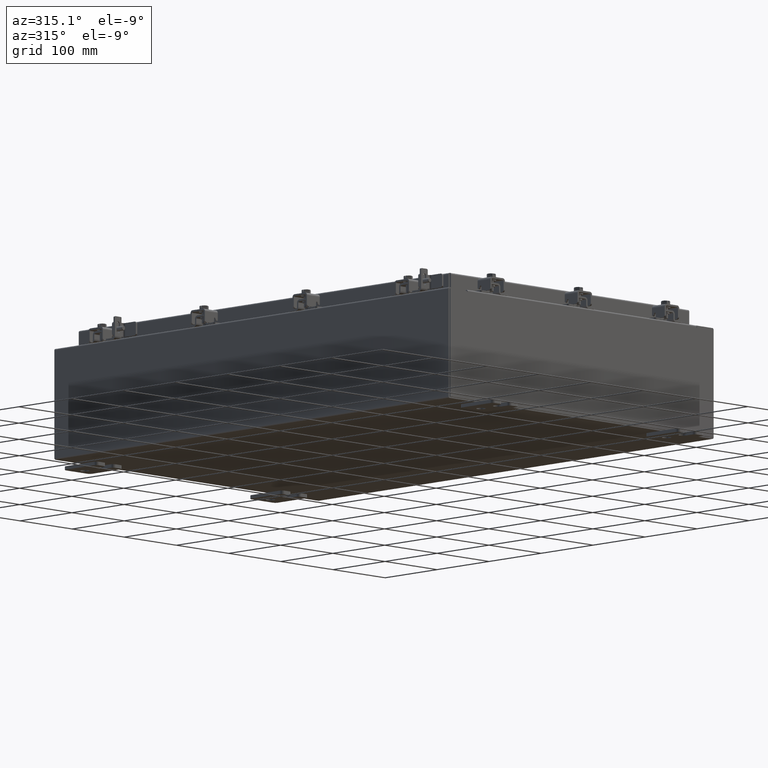
[diagram: clean part render]
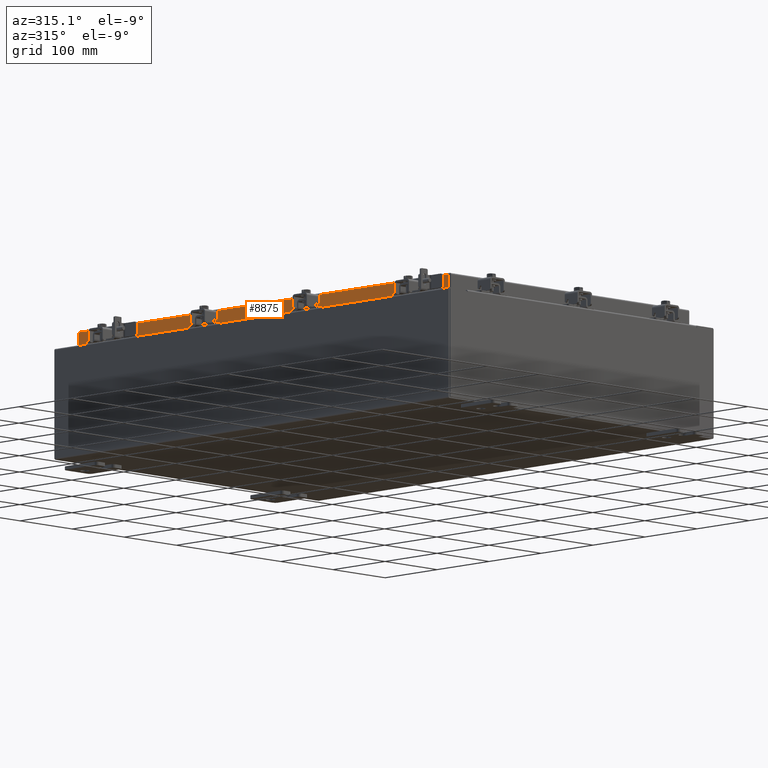
[diagram: same view with one face highlighted and labeled with its STEP entity id]
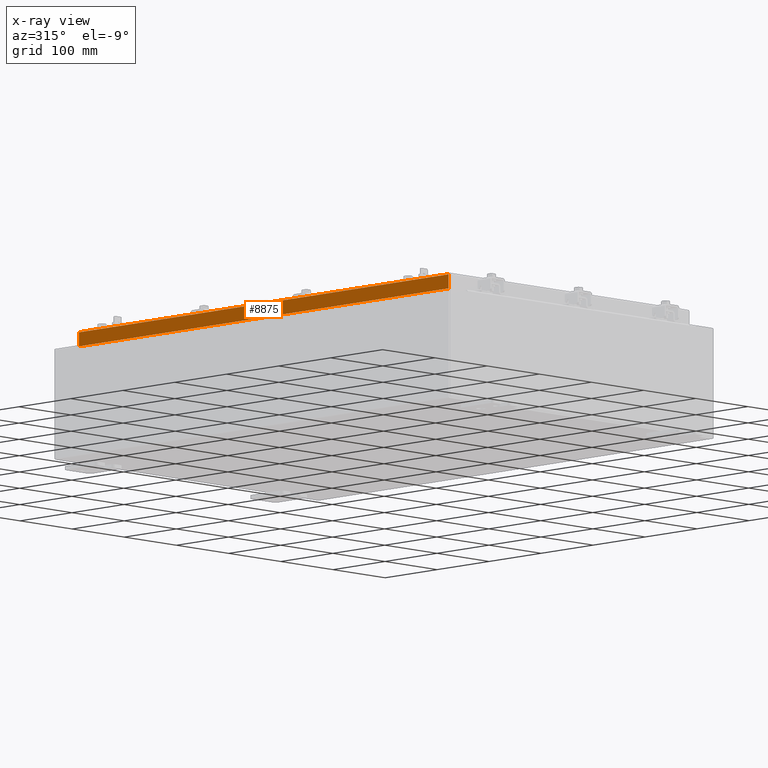
[diagram: x-ray of the same camera — body ghosted, the highlighted face saturated]
A machine part, auxiliary view. The second image highlights one B-rep face of the part: STEP entity #8875.
The next image is the same camera in x-ray: the body ghosted, the highlighted face saturated — about 0% of this face is hidden behind the body in this view.
In plain terms, the highlighted planar face has unit normal (1, 0, -0).
Its self-contained STEP definition (entity closure, byte-faithful):
#21 = CARTESIAN_POINT ( 'NONE',  ( -9.077999999999997600, -14.00515786437626400, -0.08770000000000007000 ) ) ;
#348 = FACE_OUTER_BOUND ( 'NONE', #4998, .T. ) ;
#365 = LINE ( 'NONE', #1133, #9304 ) ;
#530 = ORIENTED_EDGE ( 'NONE', *, *, #9063, .F. ) ;
#787 = ORIENTED_EDGE ( 'NONE', *, *, #16885, .T. ) ;
#1133 = CARTESIAN_POINT ( 'NONE',  ( -9.077999999999999400, -14.09399999999999600, -0.8499999999999996400 ) ) ;
#1182 = PLANE ( 'NONE',  #15527 ) ;
#2142 = CARTESIAN_POINT ( 'NONE',  ( -9.077999999999997600, 13.25515786437627400, -0.8500000000000006400 ) ) ;
#3538 = CARTESIAN_POINT ( 'NONE',  ( -9.077999999999997600, 14.00515786437626900, -0.08770000000000007000 ) ) ;
#4740 = DIRECTION ( 'NONE',  ( -2.818880942772360100E-015, 0.0000000000000000000, -1.000000000000000000 ) ) ;
#4998 = EDGE_LOOP ( 'NONE', ( #16480, #787, #10028, #5351, #530, #11899 ) ) ;
#5351 = ORIENTED_EDGE ( 'NONE', *, *, #7124, .F. ) ;
#5437 = VERTEX_POINT ( 'NONE', #21 ) ;
#5735 = VERTEX_POINT ( 'NONE', #2142 ) ;
#5810 = LINE ( 'NONE', #10098, #11134 ) ;
#7055 = LINE ( 'NONE', #19818, #20197 ) ;
#7124 = EDGE_CURVE ( 'NONE', #7869, #5735, #17720, .T. ) ;
#7869 = VERTEX_POINT ( 'NONE', #14599 ) ;
#7972 = VECTOR ( 'NONE', #9148, 39.37007874015748100 ) ;
#8656 = DIRECTION ( 'NONE',  ( -2.818880942772360100E-015, 6.982962677686265900E-015, -1.000000000000000000 ) ) ;
#8875 = ADVANCED_FACE ( 'NONE', ( #348 ), #1182, .F. ) ;
#9063 = EDGE_CURVE ( 'NONE', #22823, #7869, #7055, .T. ) ;
#9148 = DIRECTION ( 'NONE',  ( -2.818880942772360100E-015, 6.982962677686265900E-015, -1.000000000000000000 ) ) ;
#9304 = VECTOR ( 'NONE', #15330, 39.37007874015748100 ) ;
#9640 = VERTEX_POINT ( 'NONE', #3538 ) ;
#10028 = ORIENTED_EDGE ( 'NONE', *, *, #20143, .F. ) ;
#10098 = CARTESIAN_POINT ( 'NONE',  ( -9.077999999999997600, -14.09399999999999600, -0.08770000000000007000 ) ) ;
#10421 = CARTESIAN_POINT ( 'NONE',  ( -9.077999999999997600, -14.00515786437626500, -0.07469999999999978000 ) ) ;
#10429 = CARTESIAN_POINT ( 'NONE',  ( -9.077999999999997600, -13.25515786437626200, -0.8500000000000006400 ) ) ;
#11134 = VECTOR ( 'NONE', #14281, 39.37007874015748100 ) ;
#11899 = ORIENTED_EDGE ( 'NONE', *, *, #17450, .F. ) ;
#12721 = LINE ( 'NONE', #21670, #7972 ) ;
#13075 = LINE ( 'NONE', #10421, #17819 ) ;
#13663 = CARTESIAN_POINT ( 'NONE',  ( -9.077999999999997600, -3.100053527314609600E-030, 2.585061485449906300E-014 ) ) ;
#14281 = DIRECTION ( 'NONE',  ( 3.414908049476327800E-031, -1.000000000000000000, -9.308245715024052500E-046 ) ) ;
#14433 = EDGE_CURVE ( 'NONE', #9640, #5437, #5810, .T. ) ;
#14599 = CARTESIAN_POINT ( 'NONE',  ( -9.077999999999997600, -13.25515786437625600, -0.8500000000000006400 ) ) ;
#15330 = DIRECTION ( 'NONE',  ( -0.0000000000000000000, 1.000000000000000000, 1.211441035930299800E-016 ) ) ;
#15453 = DIRECTION ( 'NONE',  ( 1.000000000000000000, 3.414908049476327800E-031, -2.818880942772360100E-015 ) ) ;
#15527 = AXIS2_PLACEMENT_3D ( 'NONE', #13663, #15453, #4740 ) ;
#16211 = DIRECTION ( 'NONE',  ( -0.0000000000000000000, 1.000000000000000000, 1.211441035930299800E-016 ) ) ;
#16480 = ORIENTED_EDGE ( 'NONE', *, *, #14433, .F. ) ;
#16885 = EDGE_CURVE ( 'NONE', #9640, #20374, #12721, .T. ) ;
#17450 = EDGE_CURVE ( 'NONE', #5437, #22823, #13075, .T. ) ;
#17720 = LINE ( 'NONE', #10429, #21935 ) ;
#17819 = VECTOR ( 'NONE', #8656, 39.37007874015748100 ) ;
#17823 = CARTESIAN_POINT ( 'NONE',  ( -9.077999999999999400, 14.00515786437627400, -0.8499999999999963100 ) ) ;
#19818 = CARTESIAN_POINT ( 'NONE',  ( -9.077999999999999400, -14.09399999999999600, -0.8499999999999996400 ) ) ;
#20143 = EDGE_CURVE ( 'NONE', #5735, #20374, #365, .T. ) ;
#20197 = VECTOR ( 'NONE', #16211, 39.37007874015748100 ) ;
#20374 = VERTEX_POINT ( 'NONE', #17823 ) ;
#21670 = CARTESIAN_POINT ( 'NONE',  ( -9.077999999999997600, 14.00515786437626900, 1.236481095165428500E-013 ) ) ;
#21935 = VECTOR ( 'NONE', #22964, 39.37007874015748100 ) ;
#22172 = CARTESIAN_POINT ( 'NONE',  ( -9.077999999999999400, -14.00515786437626200, -0.8499999999999996400 ) ) ;
#22823 = VERTEX_POINT ( 'NONE', #22172 ) ;
#22964 = DIRECTION ( 'NONE',  ( -0.0000000000000000000, 1.000000000000000000, -0.0000000000000000000 ) ) ;